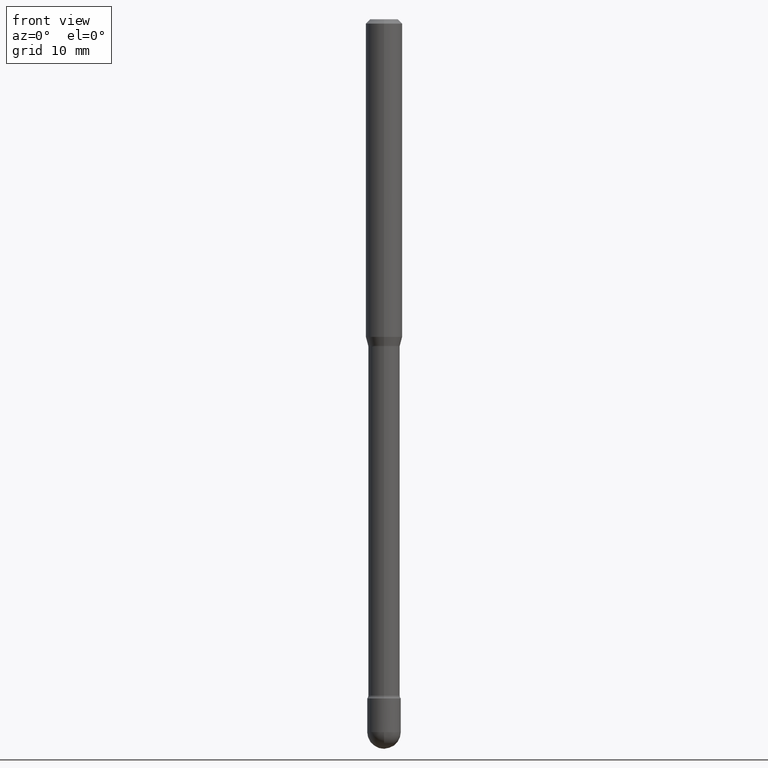
[diagram: clean part render]
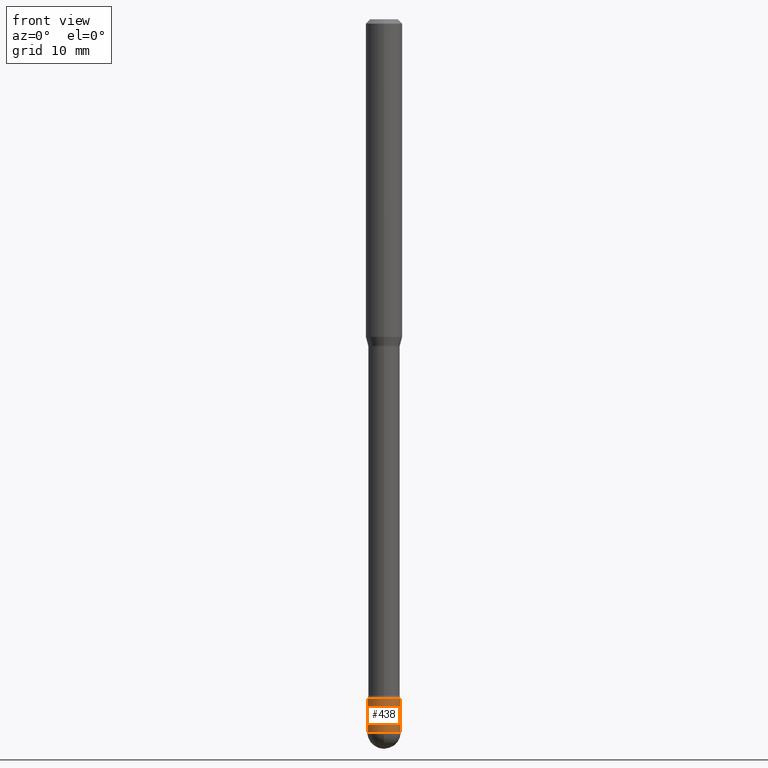
[diagram: same view with one face highlighted and labeled with its STEP entity id]
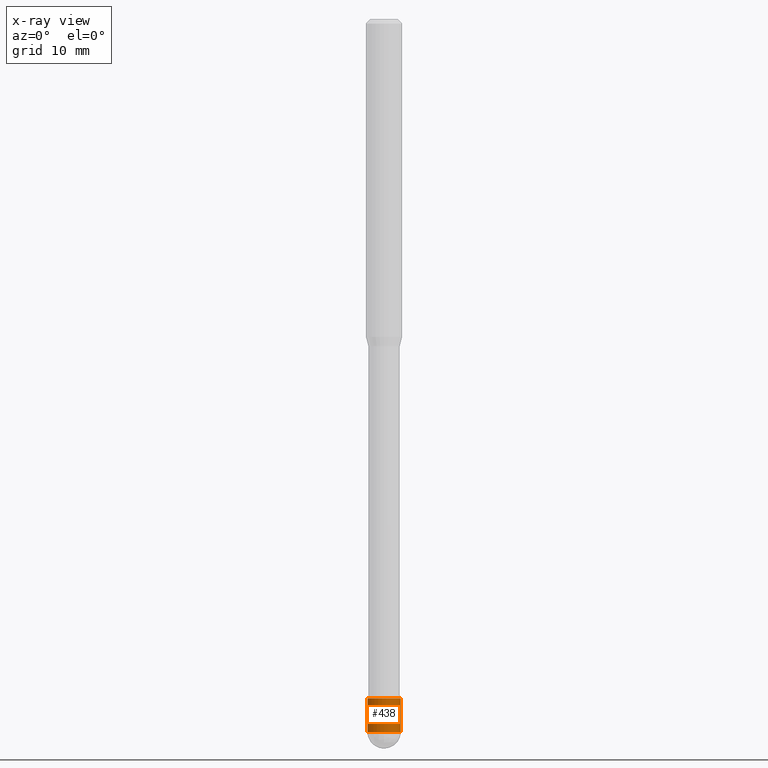
[diagram: x-ray of the same camera — body ghosted, the highlighted face saturated]
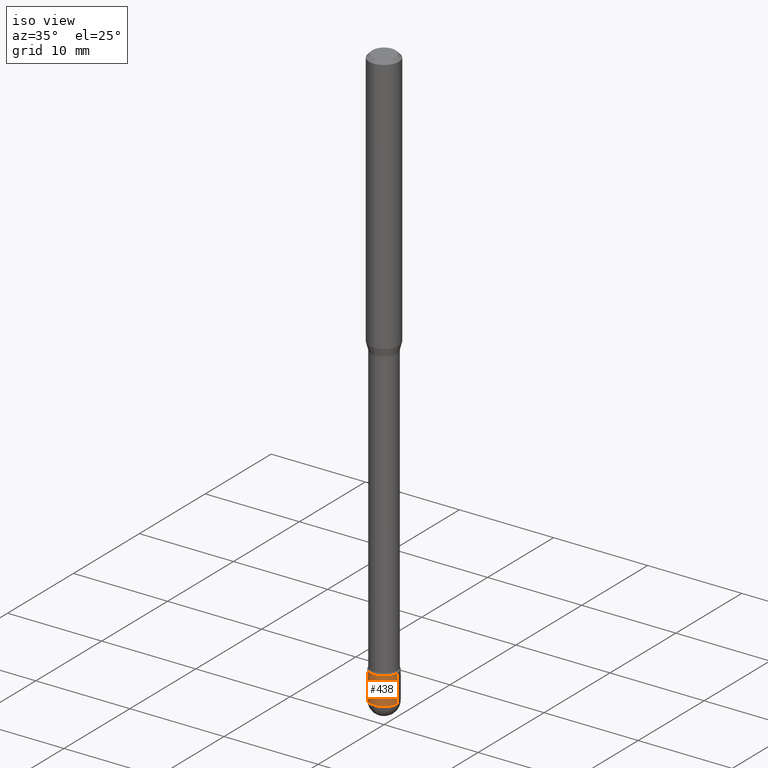
[diagram: same view with one face highlighted and labeled with its STEP entity id]
A machine part, front view. The second image highlights one B-rep face of the part: STEP entity #438.
The next image is the same camera in x-ray: the body ghosted, the highlighted face saturated — about 0% of this face is hidden behind the body in this view.
A second angle (iso view) of the same face is appended — the face is thin or edge-on in the first view.
In plain terms, the highlighted cylindrical surface (edge-blend (fillet) strip) has radius 1.4605 mm, axis along (-0, 0, 1).
Its self-contained STEP definition (entity closure, byte-faithful):
#17 = EDGE_CURVE ( 'NONE', #114, #343, #173, .T. ) ;
#64 = DIRECTION ( 'NONE',  ( -2.445468806185136597E-29, 3.491481338843145583E-15, 1.000000000000000000 ) ) ;
#66 = EDGE_CURVE ( 'NONE', #239, #254, #357, .T. ) ;
#82 = CARTESIAN_POINT ( 'NONE',  ( -0.05750000000000000250, -7.917748049744133834E-15, -2.442499999999999893 ) ) ;
#93 = EDGE_CURVE ( 'NONE', #339, #254, #525, .T. ) ;
#99 = DIRECTION ( 'NONE',  ( -2.445468806185136597E-29, 3.491481338843145583E-15, 1.000000000000000000 ) ) ;
#101 = AXIS2_PLACEMENT_3D ( 'NONE', #124, #116, #422 ) ;
#106 = ORIENTED_EDGE ( 'NONE', *, *, #93, .F. ) ;
#114 = VERTEX_POINT ( 'NONE', #82 ) ;
#116 = DIRECTION ( 'NONE',  ( -2.445468806185136597E-29, 3.491481338843145583E-15, 1.000000000000000000 ) ) ;
#124 = CARTESIAN_POINT ( 'NONE',  ( 0.000000000000000000, 0.000000000000000000, 0.000000000000000000 ) ) ;
#144 = CARTESIAN_POINT ( 'NONE',  ( 0.05750000000000000250, -8.727830476773152219E-15, -2.442499999999999893 ) ) ;
#164 = AXIS2_PLACEMENT_3D ( 'NONE', #398, #311, #262 ) ;
#166 = DIRECTION ( 'NONE',  ( -2.445468806185136877E-29, 3.491481338843145188E-15, 1.000000000000000000 ) ) ;
#167 = CARTESIAN_POINT ( 'NONE',  ( -0.05750000000000000250, 4.085620730620576246E-16, -2.828387676896570712E-30 ) ) ;
#169 = CARTESIAN_POINT ( 'NONE',  ( 0.05750000000000000250, -4.015203539669603161E-16, 2.803801646082662941E-30 ) ) ;
#173 = CIRCLE ( 'NONE', #501, 0.05750000000000000250 ) ;
#197 = ORIENTED_EDGE ( 'NONE', *, *, #504, .F. ) ;
#203 = ORIENTED_EDGE ( 'NONE', *, *, #273, .T. ) ;
#239 = VERTEX_POINT ( 'NONE', #144 ) ;
#250 = CIRCLE ( 'NONE', #267, 0.05750000000000000250 ) ;
#251 = CARTESIAN_POINT ( 'NONE',  ( -0.05750000000000000250, -7.917748049744133834E-15, -2.326999999999999957 ) ) ;
#254 = VERTEX_POINT ( 'NONE', #496 ) ;
#262 = DIRECTION ( 'NONE',  ( 1.000000000000000000, -6.982962677686273810E-15, 0.000000000000000000 ) ) ;
#267 = AXIS2_PLACEMENT_3D ( 'NONE', #368, #99, #320 ) ;
#273 = EDGE_CURVE ( 'NONE', #343, #239, #250, .T. ) ;
#290 = DIRECTION ( 'NONE',  ( 1.000000000000000000, -6.982962677686273810E-15, 0.000000000000000000 ) ) ;
#295 = ORIENTED_EDGE ( 'NONE', *, *, #17, .T. ) ;
#298 = LINE ( 'NONE', #167, #351 ) ;
#311 = DIRECTION ( 'NONE',  ( -2.445468806185136597E-29, 3.491481338843145583E-15, 1.000000000000000000 ) ) ;
#320 = DIRECTION ( 'NONE',  ( 1.000000000000000000, -6.982962677686273810E-15, 0.000000000000000000 ) ) ;
#336 = ORIENTED_EDGE ( 'NONE', *, *, #66, .T. ) ;
#339 = VERTEX_POINT ( 'NONE', #251 ) ;
#340 = CARTESIAN_POINT ( 'NONE',  ( -4.085620730619980656E-16, -0.05750000000000856509, -2.442499999999999893 ) ) ;
#343 = VERTEX_POINT ( 'NONE', #340 ) ;
#351 = VECTOR ( 'NONE', #476, 39.37007874015748143 ) ;
#357 = LINE ( 'NONE', #169, #453 ) ;
#368 = CARTESIAN_POINT ( 'NONE',  ( 5.973057559107196227E-29, -8.527943170124383355E-15, -2.442499999999999893 ) ) ;
#390 = EDGE_LOOP ( 'NONE', ( #197, #295, #203, #336, #106 ) ) ;
#398 = CARTESIAN_POINT ( 'NONE',  ( 5.690605911992812897E-29, -8.124677075487999464E-15, -2.326999999999999957 ) ) ;
#422 = DIRECTION ( 'NONE',  ( 1.000000000000000000, -6.982962677686265922E-15, 4.876176775795935232E-29 ) ) ;
#435 = CYLINDRICAL_SURFACE ( 'NONE', #101, 0.05750000000000000250 ) ;
#438 = ADVANCED_FACE ( 'NONE', ( #558 ), #435, .T. ) ;
#453 = VECTOR ( 'NONE', #166, 39.37007874015748143 ) ;
#465 = CARTESIAN_POINT ( 'NONE',  ( 5.973057559107196227E-29, -8.527943170124383355E-15, -2.442499999999999893 ) ) ;
#476 = DIRECTION ( 'NONE',  ( -2.445468806185136877E-29, 3.491481338843145188E-15, 1.000000000000000000 ) ) ;
#496 = CARTESIAN_POINT ( 'NONE',  ( 0.05750000000000000250, -8.526197429454961062E-15, -2.326999999999999957 ) ) ;
#501 = AXIS2_PLACEMENT_3D ( 'NONE', #465, #64, #290 ) ;
#504 = EDGE_CURVE ( 'NONE', #114, #339, #298, .T. ) ;
#525 = CIRCLE ( 'NONE', #164, 0.05750000000000000250 ) ;
#558 = FACE_OUTER_BOUND ( 'NONE', #390, .T. ) ;